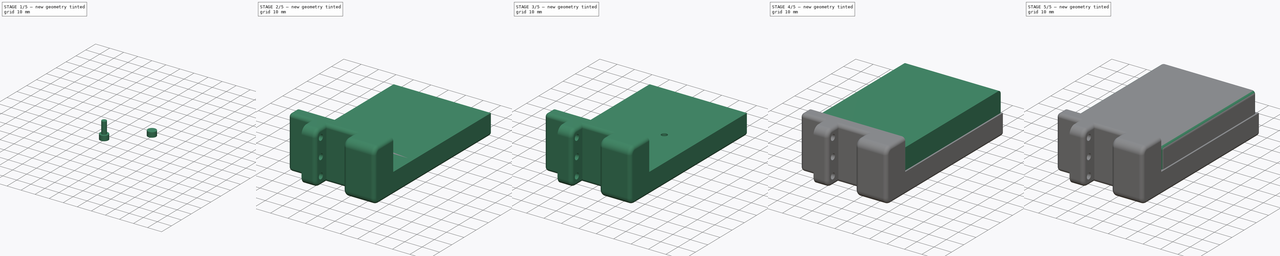
[diagram: build sequence overview — one tinted view per stage of 5, left to right]
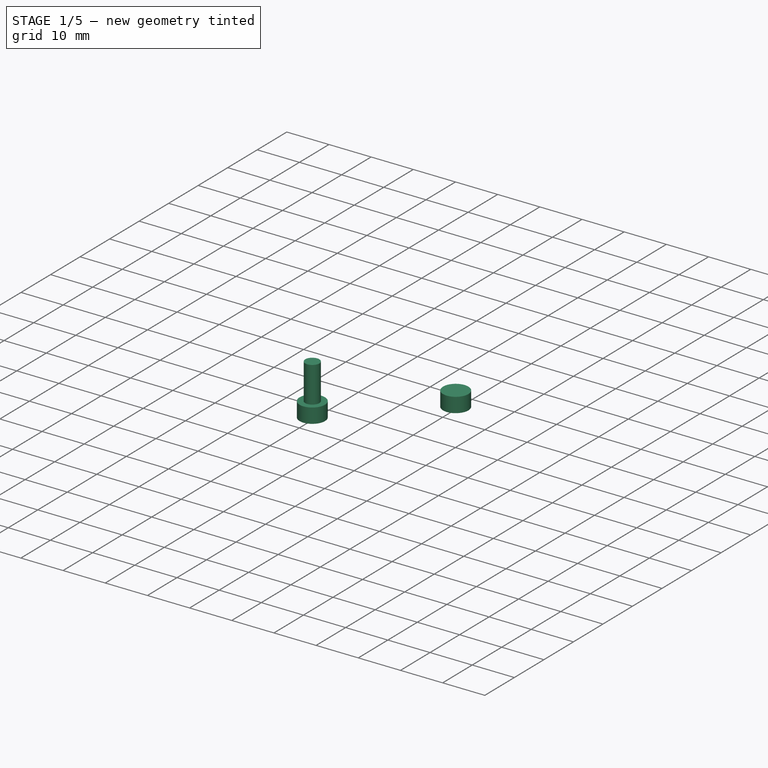
[diagram: stage 1 of 5 — iso view after this stage's code; geometry added in this stage tinted green]
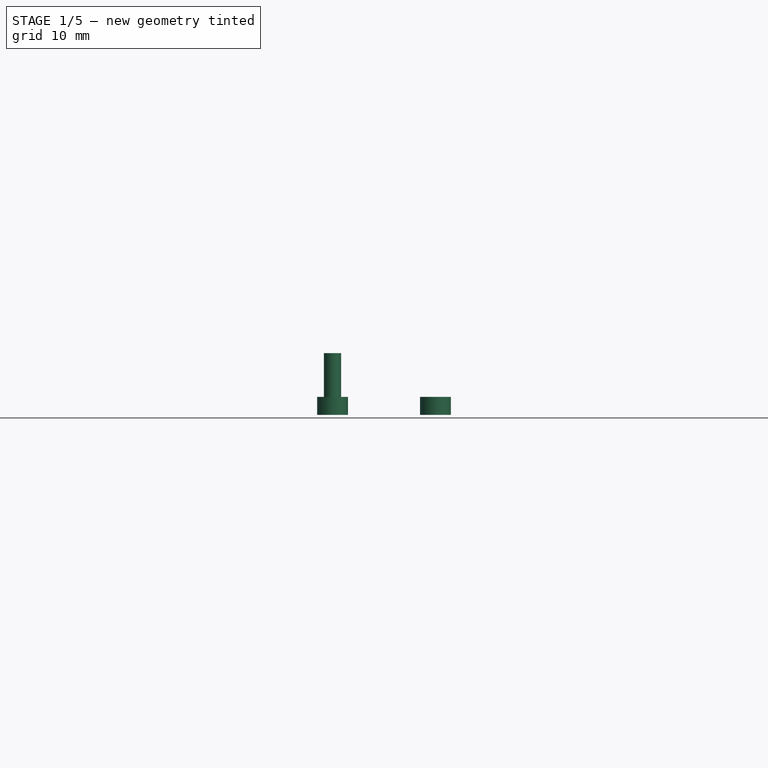
[diagram: stage 1 of 5 — front view after this stage's code; geometry added in this stage tinted green]
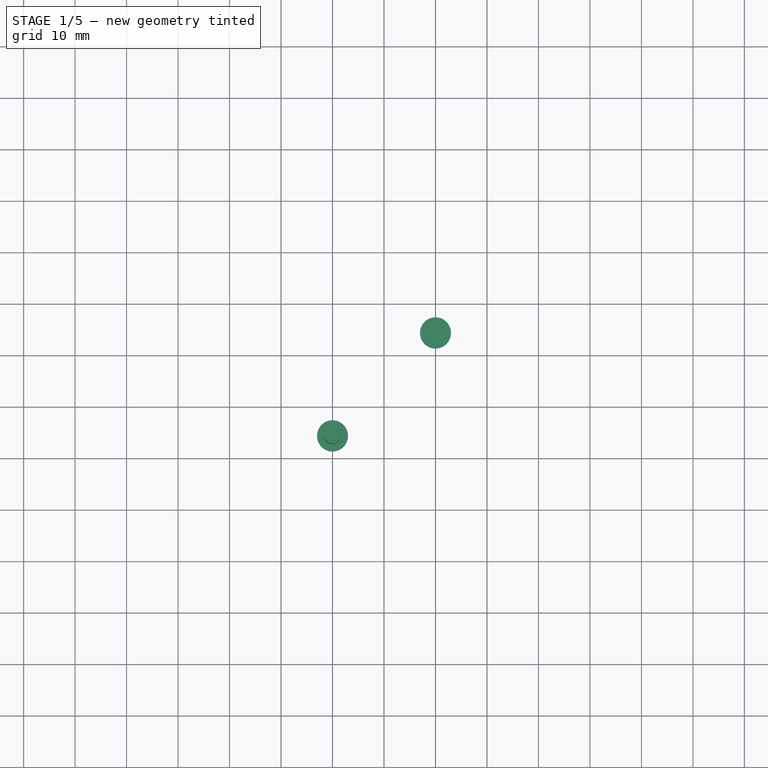
[diagram: stage 1 of 5 — top view after this stage's code; geometry added in this stage tinted green]
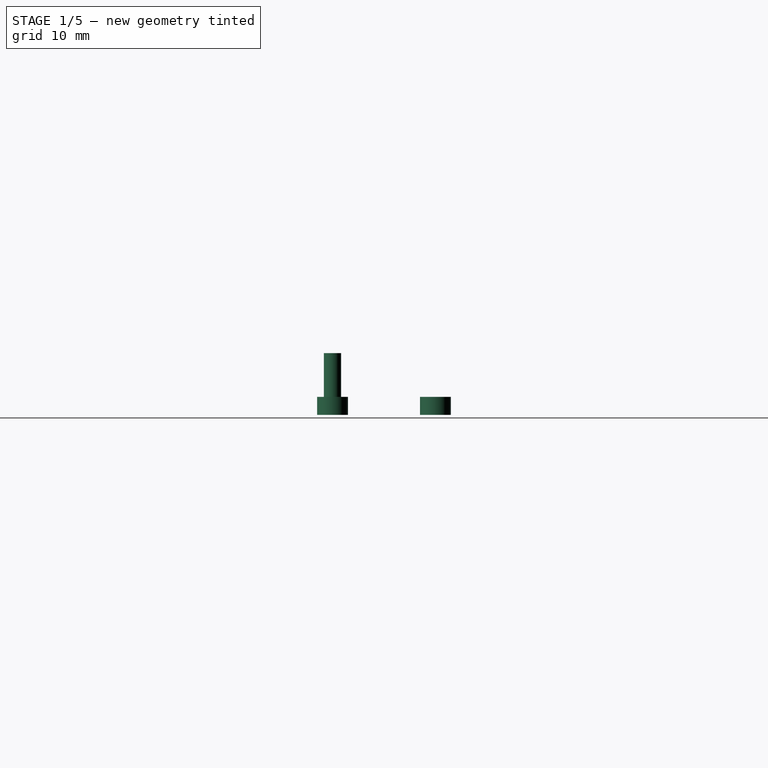
[diagram: stage 1 of 5 — right view after this stage's code; geometry added in this stage tinted green]
FCSTD DOCUMENT  (FreeCAD 0.19R24291 (Git))
Label: my_finger_clean
License: All rights reserved
LicenseURL: http://en.wikipedia.org/wiki/All_rights_reserved
objects: App::Part×8, Sketcher::SketchObject×7, PartDesign::ShapeBinder×6, PartDesign::Pad×6, PartDesign::Body×6, Part::Cut×5, PartDesign::Fillet×3, Part::Feature×1, PartDesign::Pocket×1
note: 45 computed .brp shape members not serialized (recipe doc carries the construction recipe); baked Part::Feature solids carry a one-line shape summary decoded from their .brp

FEATURE [PartDesign::ShapeBinder] CopyCut001001
  TraceSupport = false
FEATURE [Sketcher::SketchObject] Sketch004
  FullyConstrained = false
  MapMode = 5
  Placement = pos=(0,0,-15) rot=(1,0,0;3.14159rad)
  Support = -> [CopyCut001001]
  sketch-geometry (1):
    g0: Circle CenterX=10 CenterY=-44.4 CenterZ=0 NormalX=0 NormalY=0 NormalZ=1 AngleXU=0 Radius=3
FEATURE [PartDesign::Pad] Pad003
  Direction = (1,1,1)
  Length = 3.5
  Length2 = 100
  Profile = -> Sketch004
  Reversed = true
  Type = 0
FEATURE [PartDesign::ShapeBinder] CopyCut002
  TraceSupport = false
FEATURE [Sketcher::SketchObject] Sketch005
  FullyConstrained = false
  MapMode = 5
  Placement = pos=(0,0,-15) rot=(1,0,0;3.14159rad)
  Support = -> [CopyCut002]
  sketch-geometry (1):
    g0: Circle CenterX=-10 CenterY=-24.4 CenterZ=0 NormalX=0 NormalY=0 NormalZ=1 AngleXU=0 Radius=1.67
  constraints (1):
    c: Radius(g0) = 1.67
FEATURE [PartDesign::Pad] Pad004
  Direction = (1,1,1)
  Length = 12
  Length2 = 100
  Profile = -> Sketch005
  Reversed = true
  Type = 0
FEATURE [PartDesign::ShapeBinder] CopyCut003
  TraceSupport = false
FEATURE [Sketcher::SketchObject] Sketch006
  FullyConstrained = false
  MapMode = 5
  Placement = pos=(0,0,-15) rot=(1,0,0;3.14159rad)
  Support = -> [CopyCut003]
  sketch-geometry (1):
    g0: Circle CenterX=-10 CenterY=-24.4 CenterZ=0 NormalX=0 NormalY=0 NormalZ=1 AngleXU=0 Radius=3
  constraints (1):
    c: Radius(g0) = 3
FEATURE [PartDesign::Pad] Pad005
  Direction = (1,1,1)
  Length = 3.5
  Length2 = 100
  Profile = -> Sketch006
  Reversed = true
  Type = 0
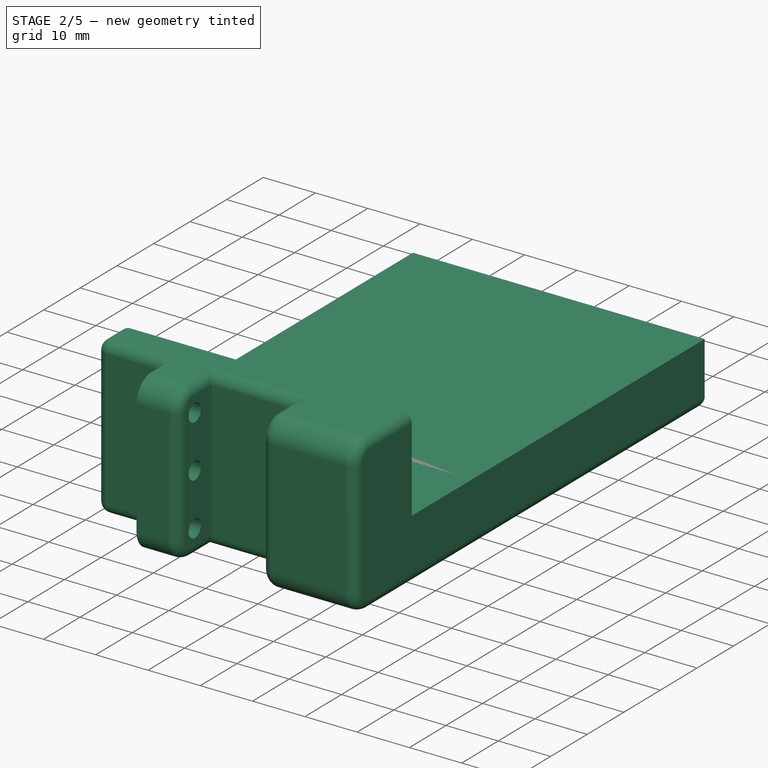
[diagram: stage 2 of 5 — iso view after this stage's code; geometry added in this stage tinted green]
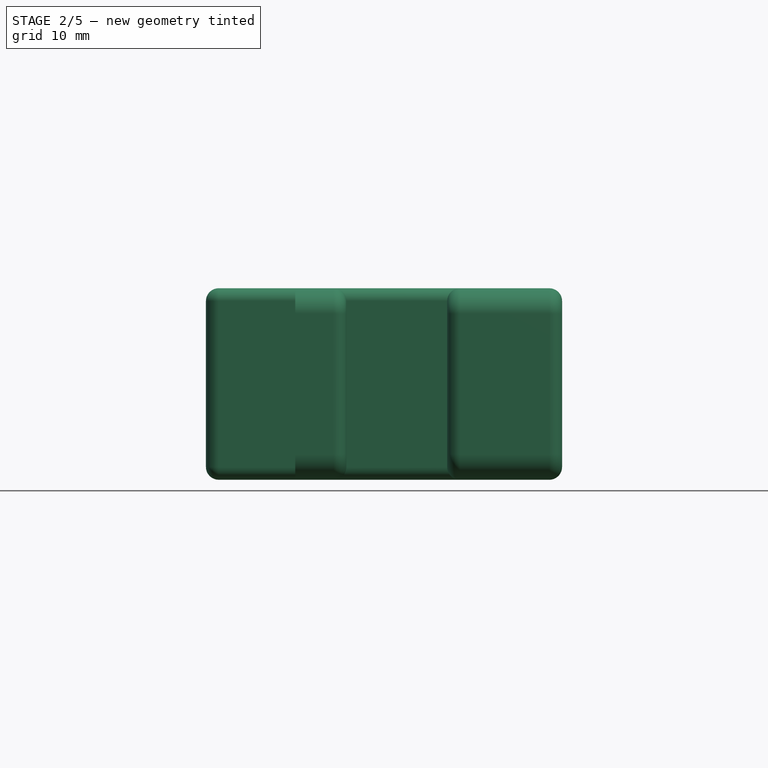
[diagram: stage 2 of 5 — front view after this stage's code; geometry added in this stage tinted green]
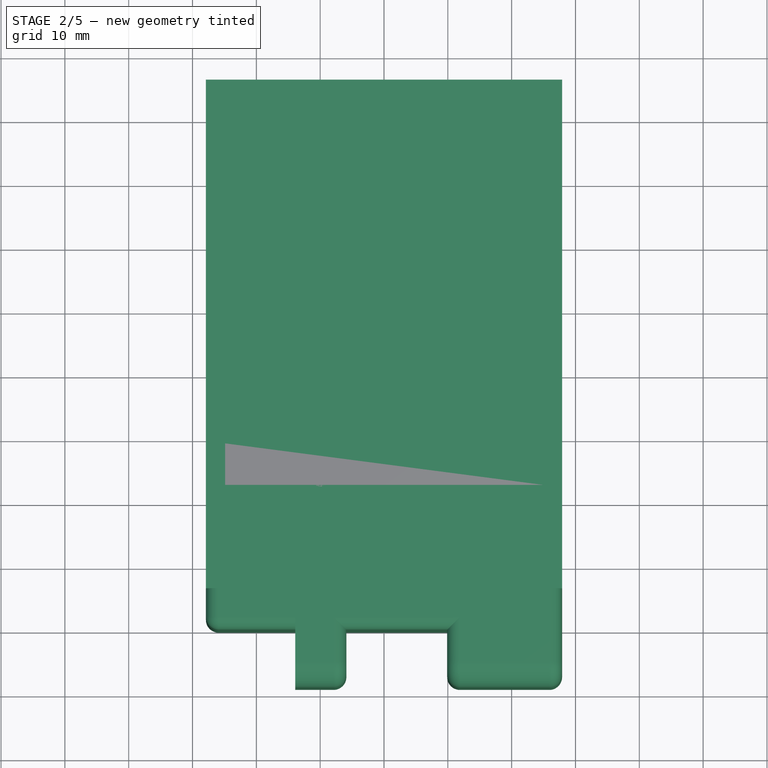
[diagram: stage 2 of 5 — top view after this stage's code; geometry added in this stage tinted green]
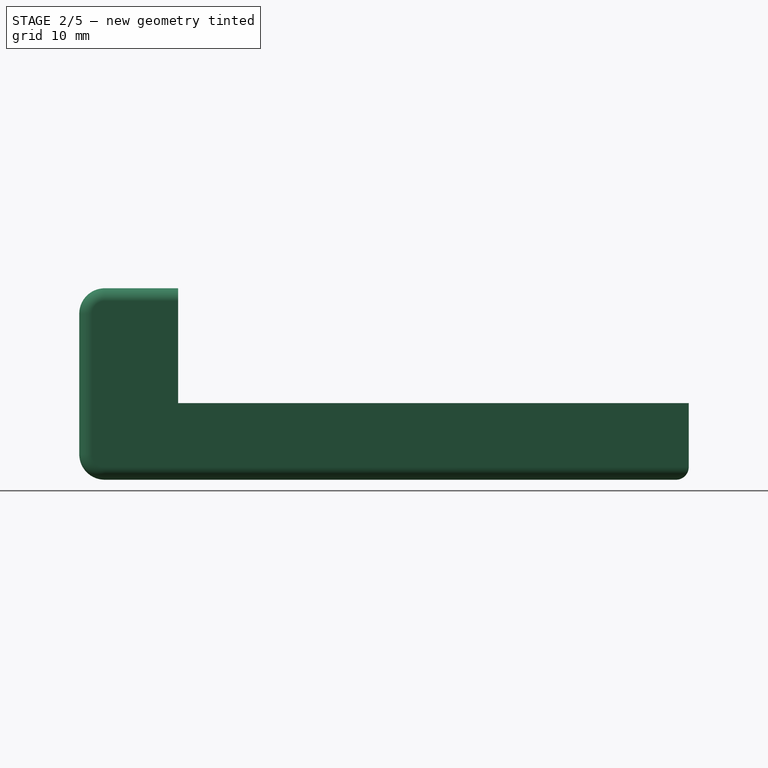
[diagram: stage 2 of 5 — right view after this stage's code; geometry added in this stage tinted green]
FEATURE [Part::Feature] Part__Feature  label="Default"
  shape: bbox 55.8 x 95.83 x 30.66 mm, 174 faces (baked)
FEATURE [App::Part] _c707f5aafa35e861b67baee97ed720120230129_1_2us5iz  label="1c707f5aafa35e861b67baee97ed720120230129-1-2us5iz"
  Group = -> [Part__Feature]
  Origin = -> Origin
FEATURE [App::Part] Part
  Group = -> [_c707f5aafa35e861b67baee97ed720120230129_1_2us5iz]
  Origin = -> Origin001
FEATURE [PartDesign::ShapeBinder] CopyPart__Feature
  TraceSupport = false
FEATURE [Sketcher::SketchObject] Sketch
  FullyConstrained = false
  MapMode = 5
  Placement = pos=(0,0,-3) rot=(0,0,1;0rad)
  Support = -> [CopyPart__Feature]
  sketch-geometry (4):
    g0: LineSegment StartX=-25.2572 StartY=82.3264 StartZ=0 EndX=25.5461 EndY=82.3264 EndZ=0
    g1: LineSegment StartX=25.5461 StartY=82.3264 StartZ=0 EndX=25.5461 EndY=7.73685 EndZ=0
    g2: LineSegment StartX=25.5461 StartY=7.73685 StartZ=0 EndX=-25.2572 EndY=7.73685 EndZ=0
    g3: LineSegment StartX=-25.2572 StartY=7.73685 StartZ=0 EndX=-25.2572 EndY=82.3264 EndZ=0
  constraints (8):
    c: Coincident(g0,g1)
    c: Coincident(g1,g2)
    c: Coincident(g2,g3)
    c: Coincident(g3,g0)
    c: Horizontal(g0)
    c: Horizontal(g2)
    c: Vertical(g1)
    c: Vertical(g3)
FEATURE [PartDesign::Pad] Pad
  Direction = (1,1,1)
  Length = 10
  Length2 = 100
  Profile = -> Sketch
  Type = 0
FEATURE [PartDesign::Body] Body
  Group = -> [CopyPart__Feature,Sketch,Pad]
  Origin = -> Origin003
  Tip = -> Pad
FEATURE [App::Part] Part001
  Group = -> [Body]
  Origin = -> Origin002
FEATURE [Part::Cut] Cut  label="finger_clean"
  Base = -> Part
  Tool = -> Part001
FEATURE [PartDesign::Body] Body001
  Group = -> [CopyCut,Sketch001,Pad001,Fillet,Fillet001,Sketch002,Pocket,Fillet002]
  Origin = -> Origin005
  Tip = -> Fillet002
FEATURE [App::Part] Part002  label="adaos_12 mm"
  Group = -> [Body001]
  Origin = -> Origin004
  Placement = pos=(1.16e-14,94.4,0) rot=(0,0,1;3.14159rad)
FEATURE [PartDesign::Pad] Pad002
  Direction = (1,1,1)
  Length = 12
  Length2 = 100
  Profile = -> Sketch003
  Reversed = true
  Type = 0
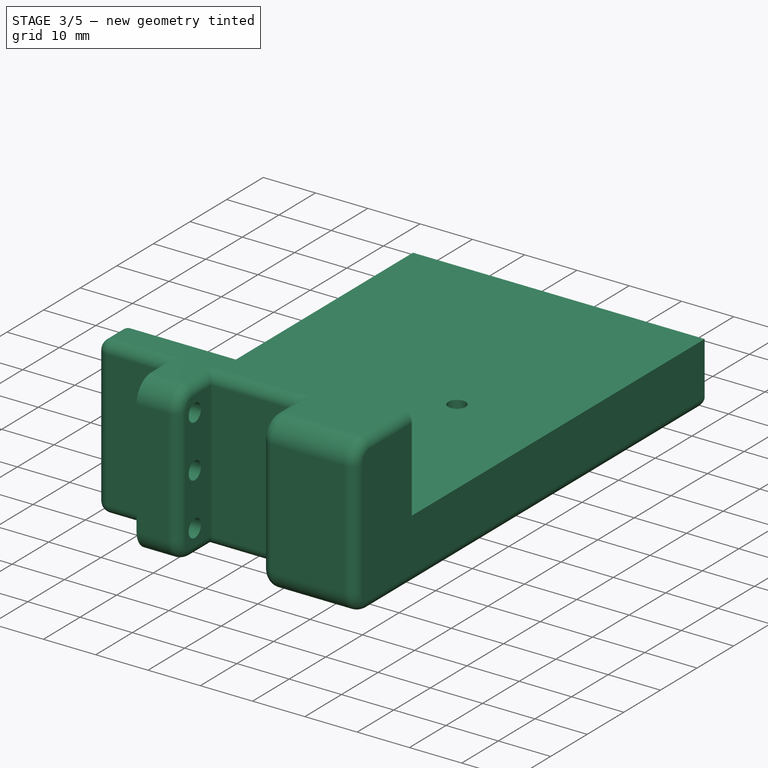
[diagram: stage 3 of 5 — iso view after this stage's code; geometry added in this stage tinted green]
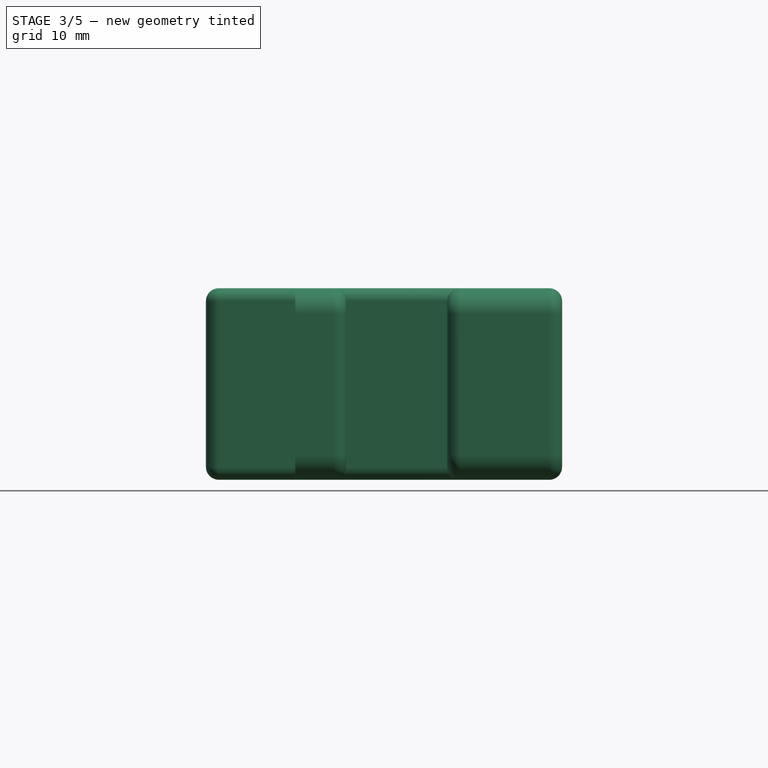
[diagram: stage 3 of 5 — front view after this stage's code; geometry added in this stage tinted green]
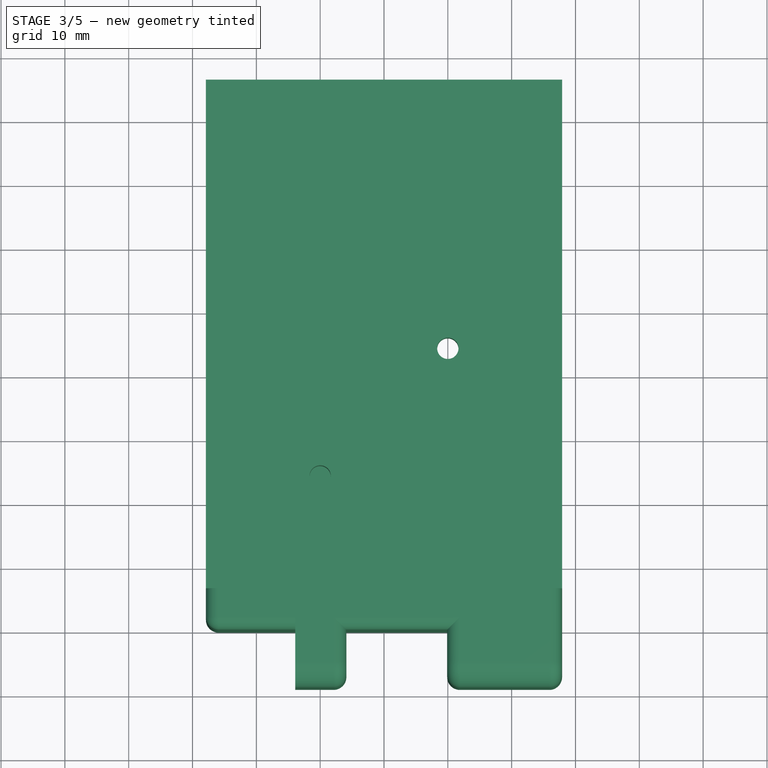
[diagram: stage 3 of 5 — top view after this stage's code; geometry added in this stage tinted green]
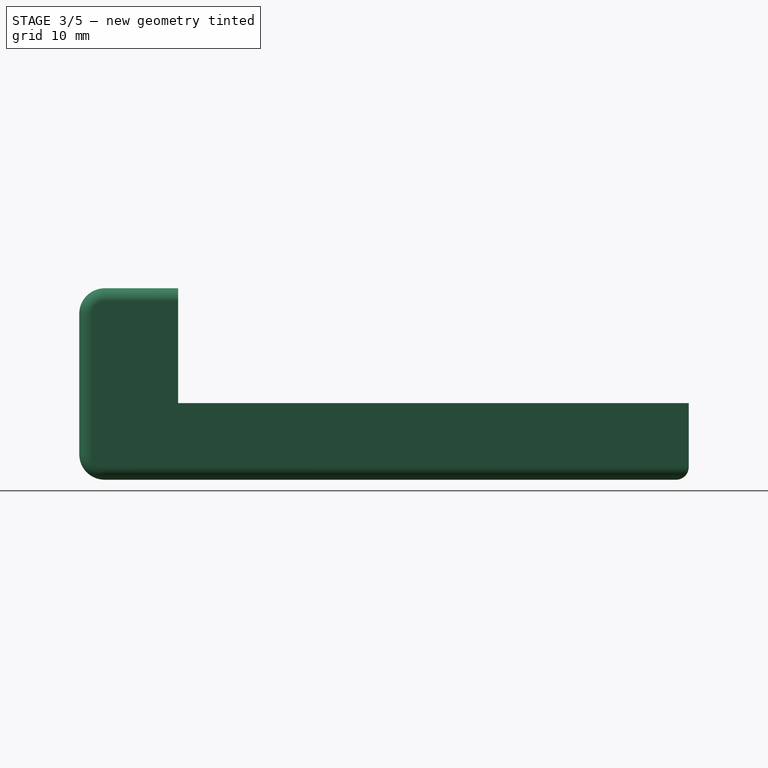
[diagram: stage 3 of 5 — right view after this stage's code; geometry added in this stage tinted green]
FEATURE [PartDesign::Body] Body002  label="cut_hole_down"
  Group = -> [CopyCut001,Sketch003,Pad002]
  Origin = -> Origin007
  Tip = -> Pad002
FEATURE [App::Part] Part003
  Group = -> [Body002]
  Origin = -> Origin006
FEATURE [Part::Cut] Cut001
  Base = -> Cut
  Tool = -> Part003
FEATURE [PartDesign::Body] Body003
  Group = -> [CopyCut001001,Sketch004,Pad003]
  Origin = -> Origin009
  Tip = -> Pad003
FEATURE [App::Part] Part004  label="cut_screw_head"
  Group = -> [Body003]
  Origin = -> Origin008
FEATURE [Part::Cut] Cut002
  Base = -> Cut001
  Tool = -> Part004
FEATURE [PartDesign::Body] Body004
  Group = -> [CopyCut002,Sketch005,Pad004]
  Origin = -> Origin011
  Tip = -> Pad004
FEATURE [App::Part] Part005  label="cut_hole_up"
  Group = -> [Body004]
  Origin = -> Origin010
FEATURE [Part::Cut] Cut003
  Base = -> Cut002
  Tool = -> Part005
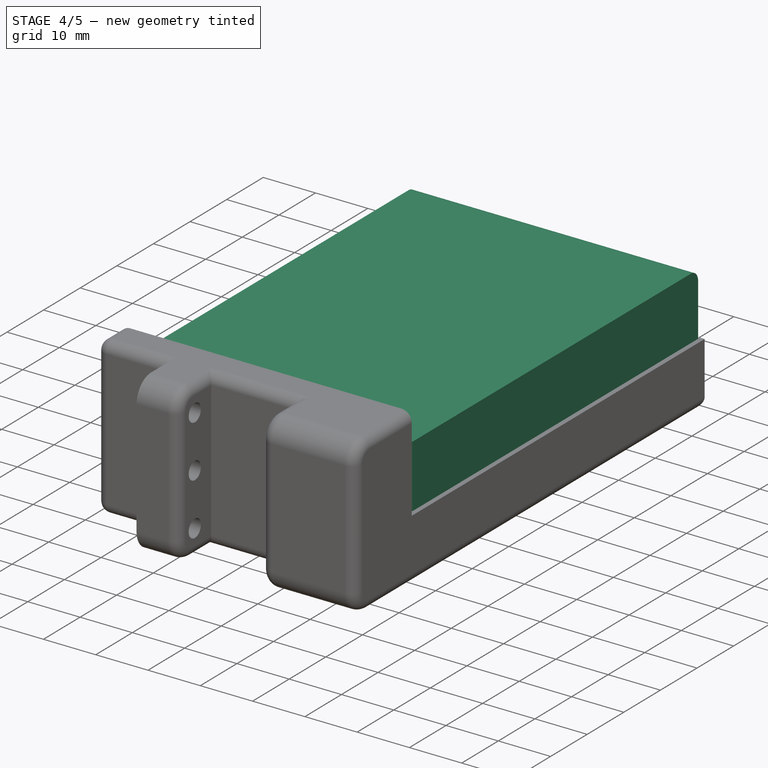
[diagram: stage 4 of 5 — iso view after this stage's code; geometry added in this stage tinted green]
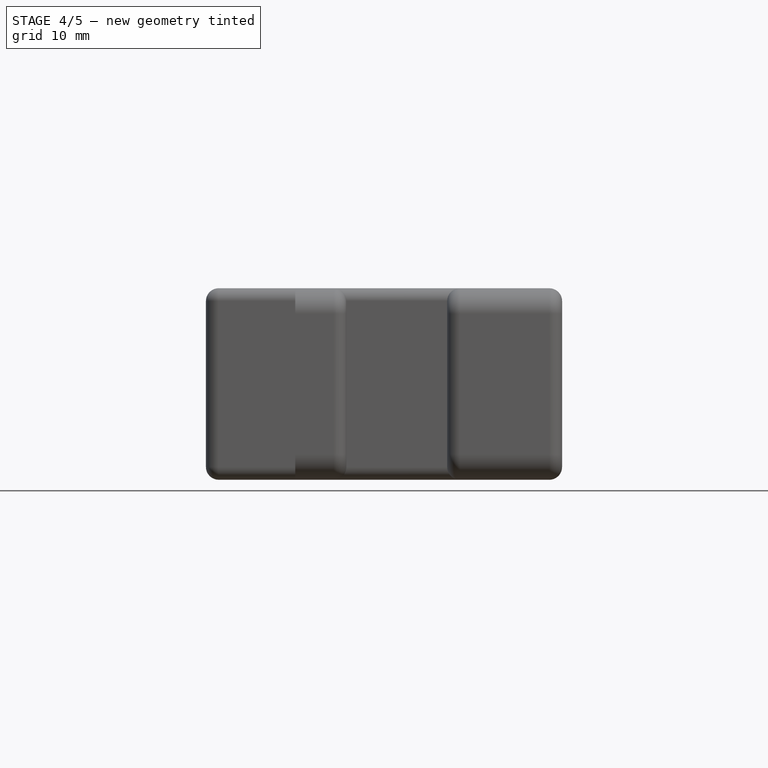
[diagram: stage 4 of 5 — front view after this stage's code; geometry added in this stage tinted green]
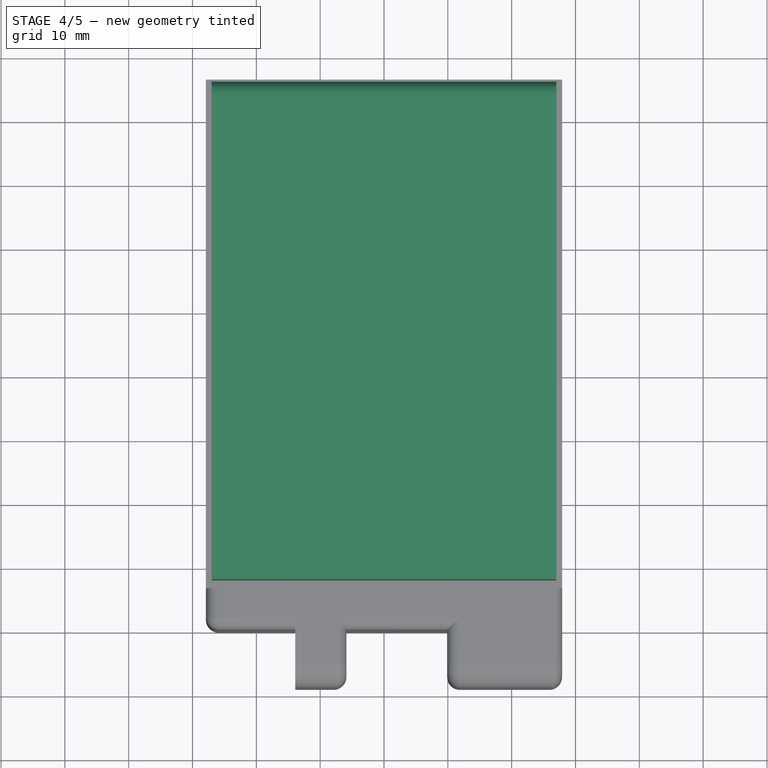
[diagram: stage 4 of 5 — top view after this stage's code; geometry added in this stage tinted green]
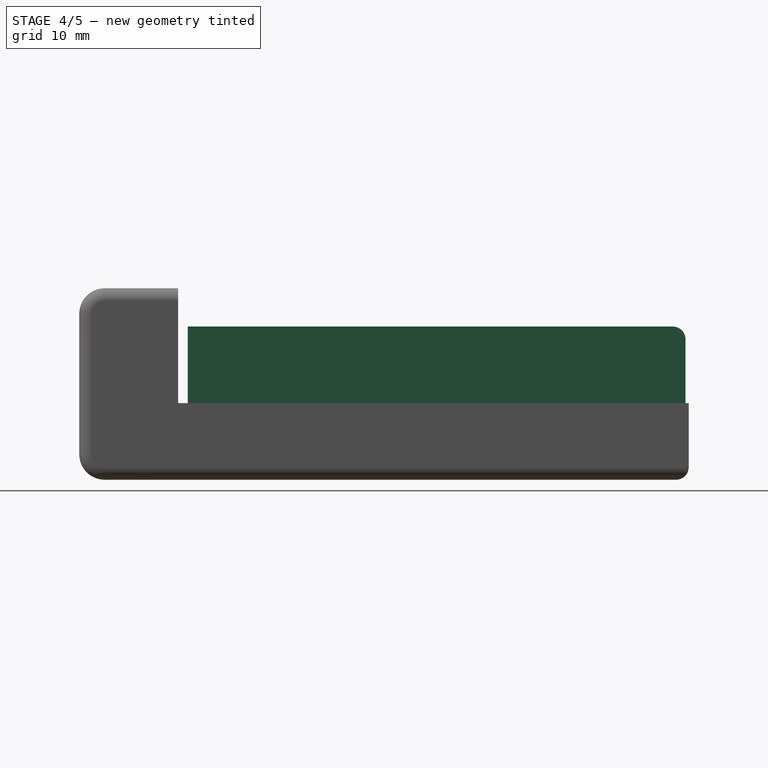
[diagram: stage 4 of 5 — right view after this stage's code; geometry added in this stage tinted green]
FEATURE [PartDesign::ShapeBinder] CopyCut
  TraceSupport = false
FEATURE [Sketcher::SketchObject] Sketch001
  FullyConstrained = false
  MapMode = 5
  Placement = pos=(0,0,-3) rot=(0,0,1;0rad)
  Support = -> [CopyCut]
  sketch-geometry (4):
    g0: LineSegment StartX=-27 StartY=86 StartZ=0 EndX=27 EndY=86 EndZ=0
    g1: LineSegment StartX=27 StartY=86 StartZ=0 EndX=27 EndY=8 EndZ=0
    g2: LineSegment StartX=27 StartY=8 StartZ=0 EndX=-27 EndY=8 EndZ=0
    g3: LineSegment StartX=-27 StartY=8 StartZ=0 EndX=-27 EndY=86 EndZ=0
  constraints (8):
    c: Coincident(g0,g1)
    c: Coincident(g1,g2)
    c: Coincident(g2,g3)
    c: Coincident(g3,g0)
    c: Horizontal(g0)
    c: Horizontal(g2)
    c: Vertical(g1)
    c: Vertical(g3)
FEATURE [PartDesign::Pad] Pad001
  Direction = (1,1,1)
  Length = 12
  Length2 = 100
  Profile = -> Sketch001
  Type = 0
FEATURE [PartDesign::Fillet] Fillet
  Base = -> Pad001 [Edge4]
  BaseFeature = -> Pad001
  Radius = 2
  SupportTransform = false
FEATURE [PartDesign::Body] Body005
  Group = -> [CopyCut003,Sketch006,Pad005]
  Origin = -> Origin013
  Tip = -> Pad005
FEATURE [App::Part] Part006  label="cat_screw_head_up"
  Group = -> [Body005]
  Origin = -> Origin012
FEATURE [Part::Cut] Cut004  label="finger"
  Base = -> Cut003
  Tool = -> Part006
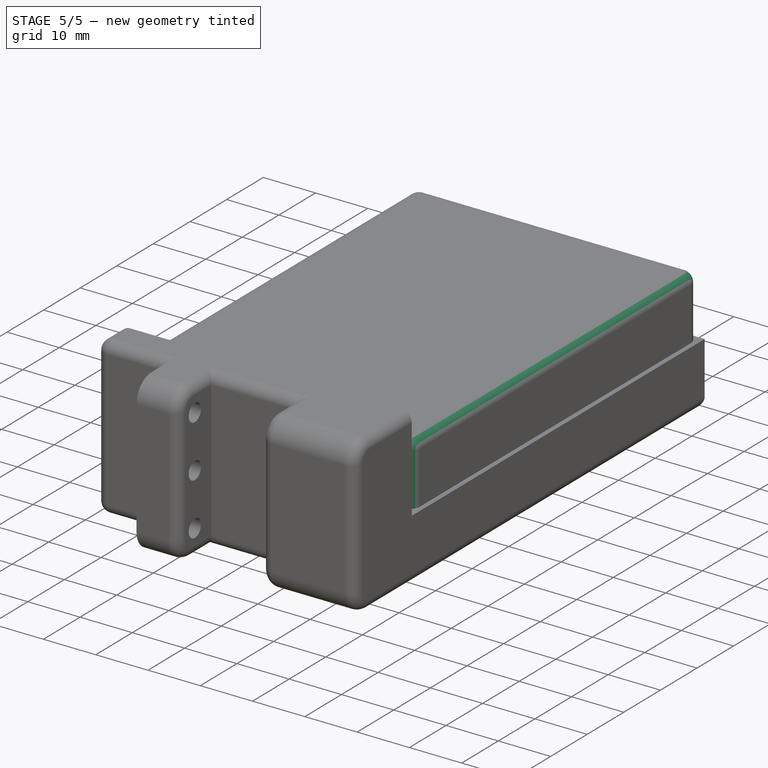
[diagram: stage 5 of 5 — iso view after this stage's code; geometry added in this stage tinted green]
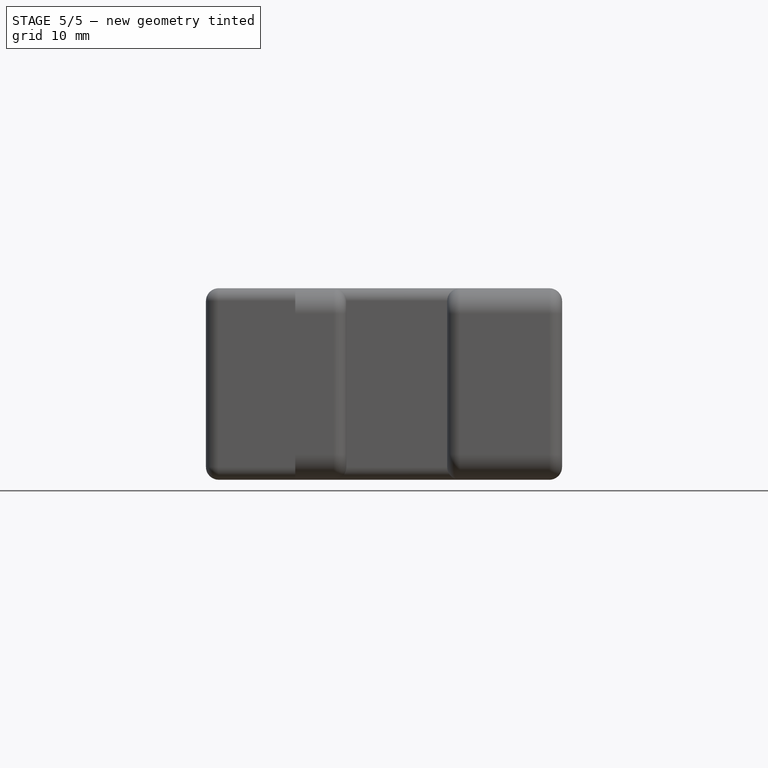
[diagram: stage 5 of 5 — front view after this stage's code; geometry added in this stage tinted green]
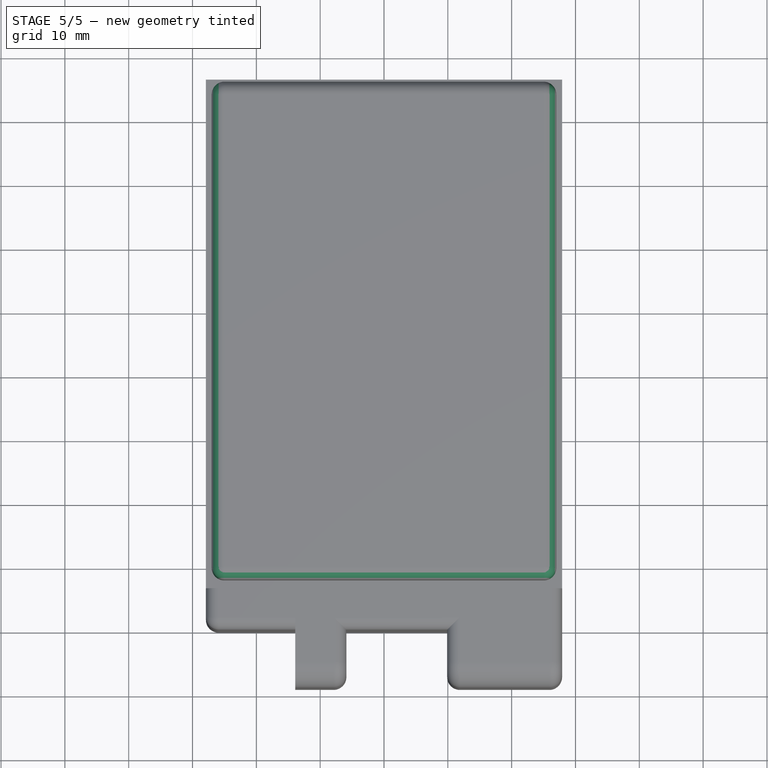
[diagram: stage 5 of 5 — top view after this stage's code; geometry added in this stage tinted green]
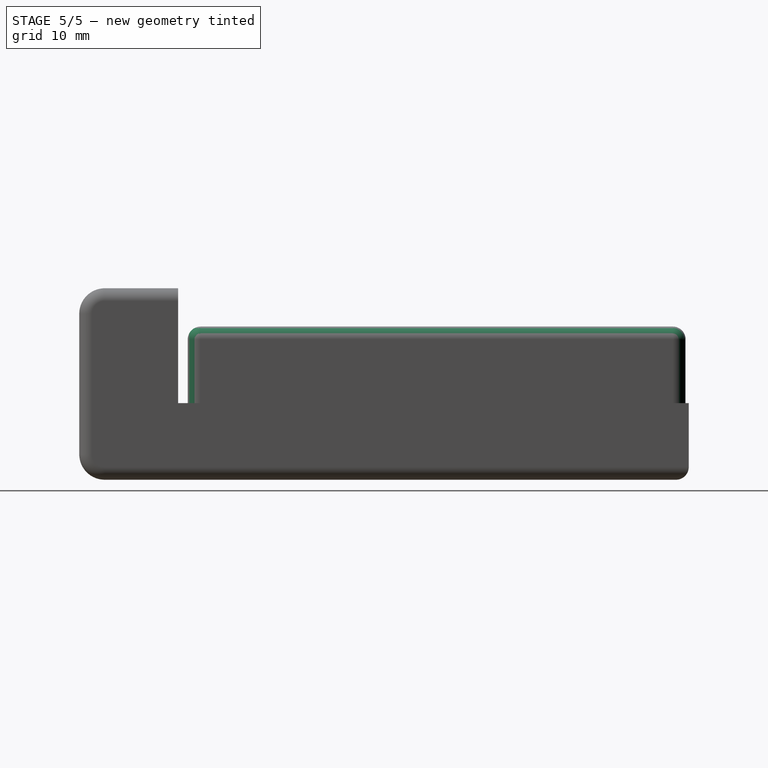
[diagram: stage 5 of 5 — right view after this stage's code; geometry added in this stage tinted green]
FEATURE [PartDesign::Fillet] Fillet001
  Base = -> Fillet [Edge7,Edge13]
  BaseFeature = -> Fillet
  Radius = 2
  SupportTransform = false
FEATURE [Sketcher::SketchObject] Sketch002
  FullyConstrained = false
  MapMode = 5
  Placement = pos=(0,0,-3) rot=(1,0,0;3.14159rad)
  Support = -> [Fillet001]
  sketch-geometry (2):
    g0: Circle CenterX=10 CenterY=-70 CenterZ=0 NormalX=0 NormalY=0 NormalZ=1 AngleXU=0 Radius=2
    g1: Circle CenterX=-10 CenterY=-50 CenterZ=0 NormalX=0 NormalY=0 NormalZ=1 AngleXU=0 Radius=2
  constraints (2):
    c: Radius(g1) = 2
    c: Radius(g0) = 2
FEATURE [PartDesign::Pocket] Pocket
  BaseFeature = -> Fillet001
  Length = 6
  Length2 = 100
  Profile = -> Sketch002
  Type = 0
FEATURE [PartDesign::ShapeBinder] CopyCut001
  TraceSupport = false
FEATURE [Sketcher::SketchObject] Sketch003
  FullyConstrained = false
  MapMode = 5
  Placement = pos=(0,0,-15) rot=(1,0,0;3.14159rad)
  Support = -> [CopyCut001]
  sketch-geometry (1):
    g0: Circle CenterX=10 CenterY=-44.4 CenterZ=0 NormalX=0 NormalY=0 NormalZ=1 AngleXU=0 Radius=1.67
  constraints (1):
    c: Radius(g0) = 1.67
FEATURE [PartDesign::Fillet] Fillet002
  Base = -> Pocket [Edge25]
  BaseFeature = -> Pocket
  Radius = 2
  SupportTransform = false
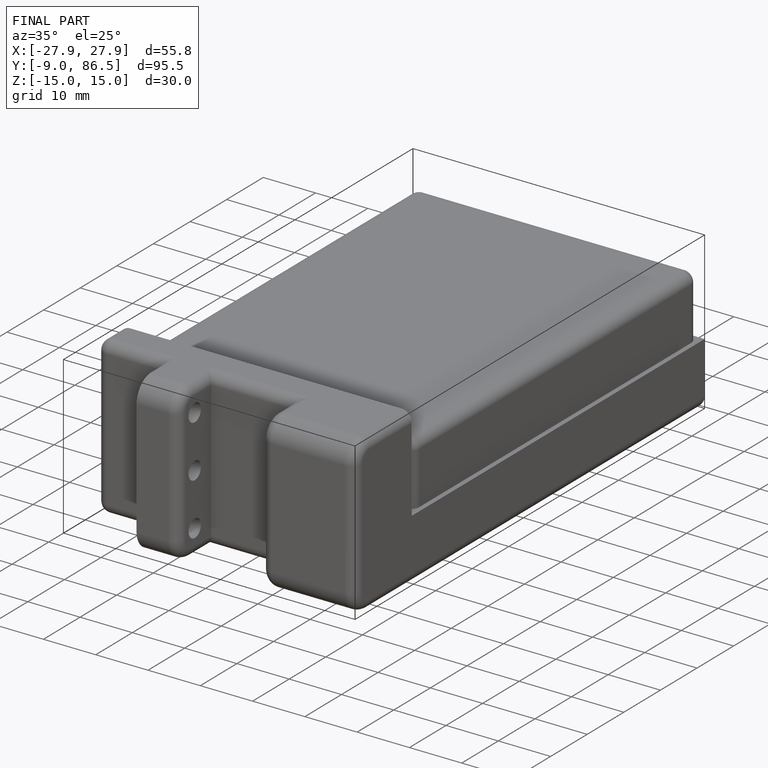
[diagram: finished part — iso view with bounding-box wireframe]
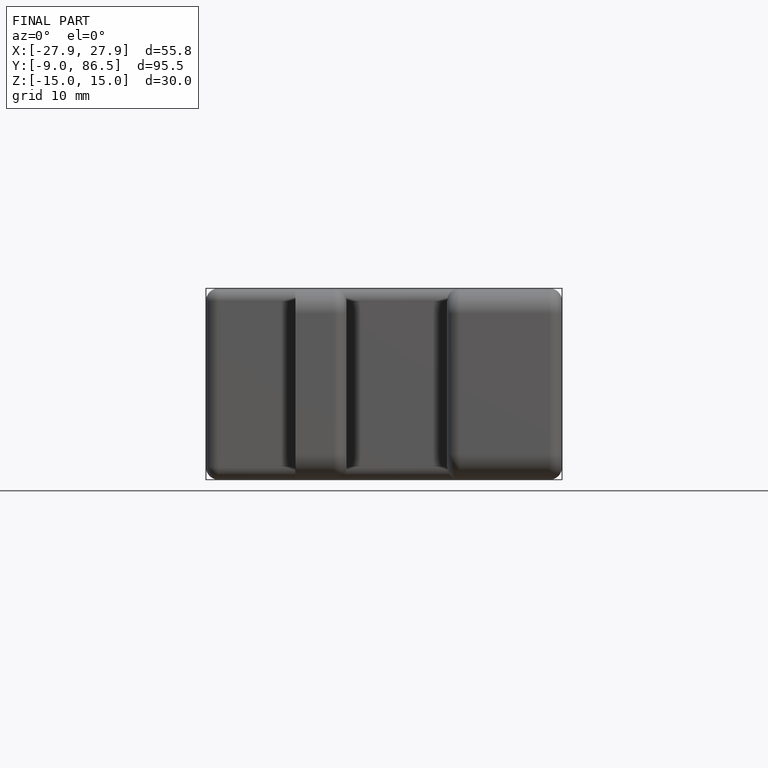
[diagram: finished part — front view with bounding-box wireframe]
